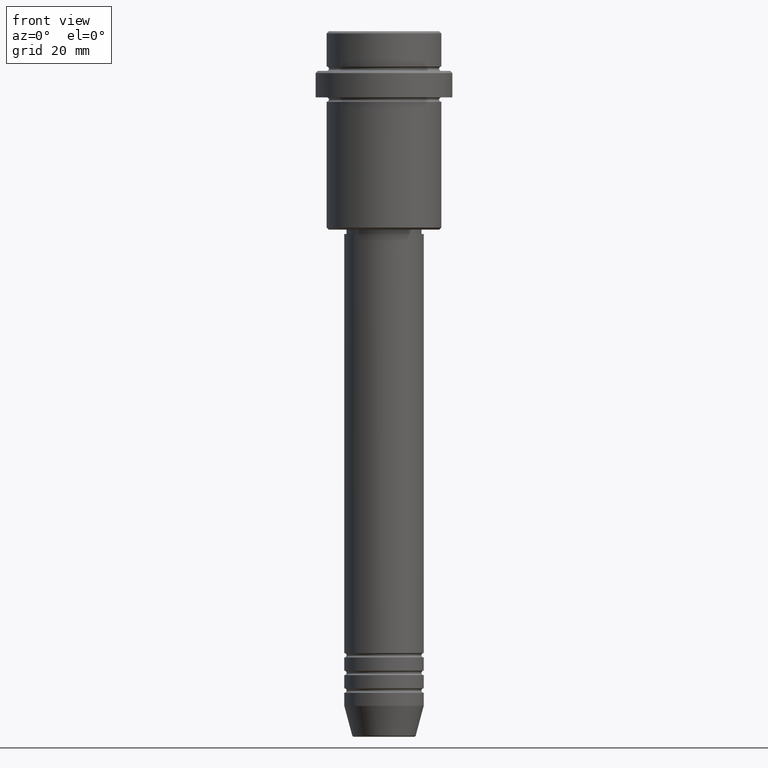
[diagram: clean part render]
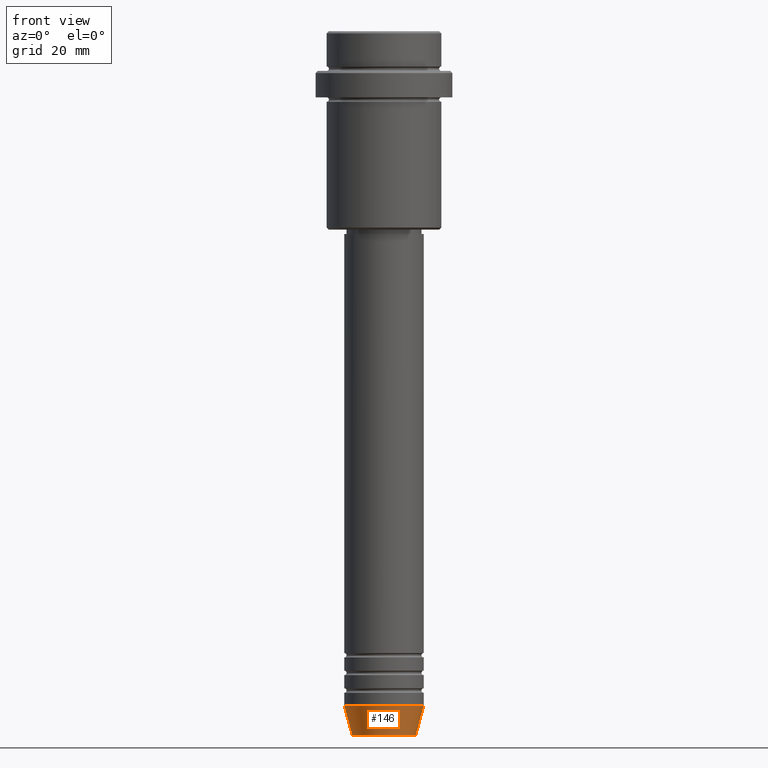
[diagram: same view with one face highlighted and labeled with its STEP entity id]
A machine part, front view. The second image highlights one B-rep face of the part: STEP entity #146.
In plain terms, the highlighted conical surface has half-angle 15 deg.
Its self-contained STEP definition (entity closure, byte-faithful):
#16 = CARTESIAN_POINT ( 'NONE',  ( 0.000000000000000000, 0.000000000000000000, -153.0000000000000000 ) ) ;
#39 = DIRECTION ( 'NONE',  ( -0.000000000000000000, -0.000000000000000000, 1.000000000000000000 ) ) ;
#55 = CIRCLE ( 'NONE', #396, 7.223655072137196598 ) ;
#96 = LINE ( 'NONE', #1405, #1283 ) ;
#139 = EDGE_CURVE ( 'NONE', #1381, #284, #232, .T. ) ;
#146 = ADVANCED_FACE ( 'NONE', ( #452 ), #149, .T. ) ;
#149 = CONICAL_SURFACE ( 'NONE', #1128, 9.000000000000000000, 0.2617993877991500740 ) ;
#164 = DIRECTION ( 'NONE',  ( 1.000000000000000000, 0.000000000000000000, 0.000000000000000000 ) ) ;
#178 = ORIENTED_EDGE ( 'NONE', *, *, #139, .T. ) ;
#197 = CARTESIAN_POINT ( 'NONE',  ( -9.000000000000000000, 1.102182119232617714E-15, -153.0000000000000000 ) ) ;
#232 = LINE ( 'NONE', #248, #580 ) ;
#248 = CARTESIAN_POINT ( 'NONE',  ( 9.000000000000000000, 0.000000000000000000, -153.0000000000000000 ) ) ;
#272 = EDGE_CURVE ( 'NONE', #1140, #1381, #55, .T. ) ;
#278 = EDGE_LOOP ( 'NONE', ( #702, #927, #178, #1018 ) ) ;
#284 = VERTEX_POINT ( 'NONE', #506 ) ;
#313 = CIRCLE ( 'NONE', #497, 9.000000000000000000 ) ;
#319 = DIRECTION ( 'NONE',  ( -0.2588190451025213501, 3.169619151431772337E-17, 0.9659258262890680902 ) ) ;
#396 = AXIS2_PLACEMENT_3D ( 'NONE', #1369, #1149, #164 ) ;
#418 = CARTESIAN_POINT ( 'NONE',  ( 7.223655072137196598, 0.000000000000000000, -159.6294095225512422 ) ) ;
#452 = FACE_OUTER_BOUND ( 'NONE', #278, .T. ) ;
#463 = DIRECTION ( 'NONE',  ( 0.2588190451025213501, 0.000000000000000000, 0.9659258262890680902 ) ) ;
#476 = CARTESIAN_POINT ( 'NONE',  ( 0.000000000000000000, 0.000000000000000000, -153.0000000000000000 ) ) ;
#497 = AXIS2_PLACEMENT_3D ( 'NONE', #476, #697, #1026 ) ;
#506 = CARTESIAN_POINT ( 'NONE',  ( 9.000000000000000000, 0.000000000000000000, -153.0000000000000000 ) ) ;
#549 = DIRECTION ( 'NONE',  ( 1.000000000000000000, 0.000000000000000000, 0.000000000000000000 ) ) ;
#576 = VERTEX_POINT ( 'NONE', #197 ) ;
#580 = VECTOR ( 'NONE', #463, 1000.000000000000000 ) ;
#640 = EDGE_CURVE ( 'NONE', #1140, #576, #96, .T. ) ;
#697 = DIRECTION ( 'NONE',  ( -0.000000000000000000, -0.000000000000000000, 1.000000000000000000 ) ) ;
#702 = ORIENTED_EDGE ( 'NONE', *, *, #640, .F. ) ;
#927 = ORIENTED_EDGE ( 'NONE', *, *, #272, .T. ) ;
#1018 = ORIENTED_EDGE ( 'NONE', *, *, #1221, .F. ) ;
#1026 = DIRECTION ( 'NONE',  ( 1.000000000000000000, 0.000000000000000000, 0.000000000000000000 ) ) ;
#1128 = AXIS2_PLACEMENT_3D ( 'NONE', #16, #39, #549 ) ;
#1140 = VERTEX_POINT ( 'NONE', #1219 ) ;
#1149 = DIRECTION ( 'NONE',  ( -0.000000000000000000, -0.000000000000000000, 1.000000000000000000 ) ) ;
#1219 = CARTESIAN_POINT ( 'NONE',  ( -7.223655072137197486, 9.934123627281769054E-16, -159.6294095225512422 ) ) ;
#1221 = EDGE_CURVE ( 'NONE', #576, #284, #313, .T. ) ;
#1283 = VECTOR ( 'NONE', #319, 1000.000000000000000 ) ;
#1369 = CARTESIAN_POINT ( 'NONE',  ( 0.000000000000000000, 0.000000000000000000, -159.6294095225512422 ) ) ;
#1381 = VERTEX_POINT ( 'NONE', #418 ) ;
#1405 = CARTESIAN_POINT ( 'NONE',  ( -9.000000000000000000, 1.102182119232617714E-15, -153.0000000000000000 ) ) ;